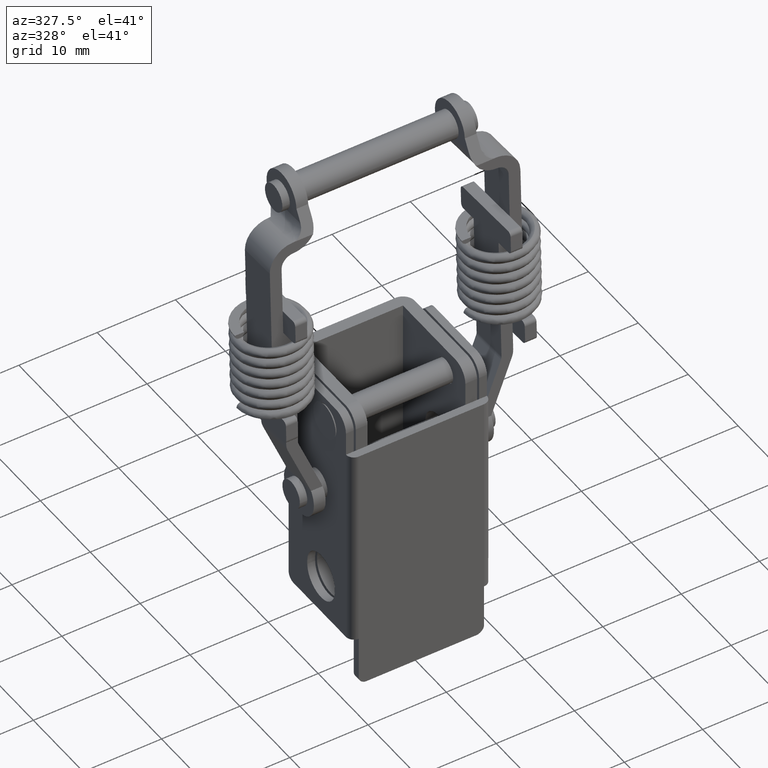
[diagram: clean part render]
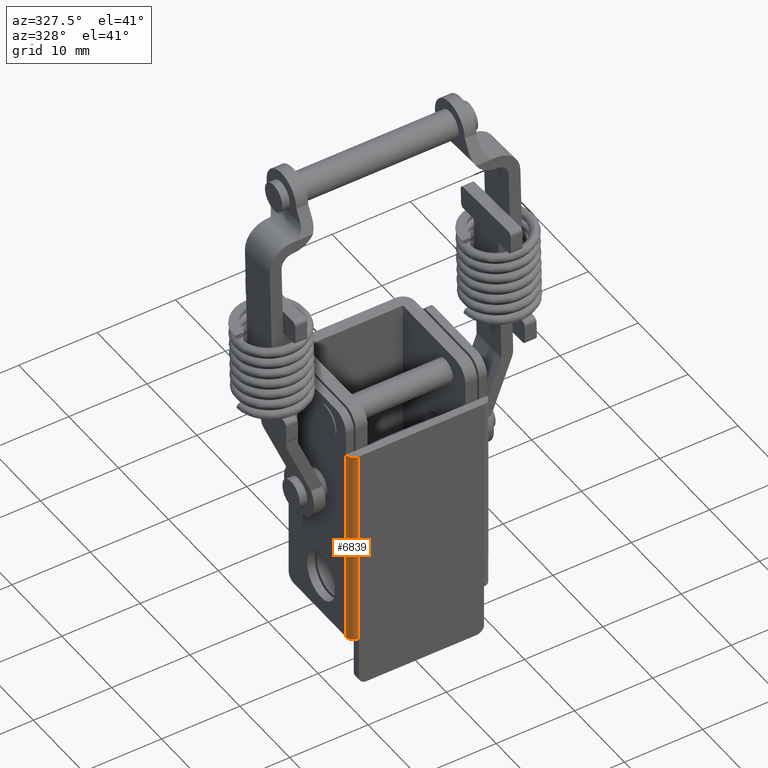
[diagram: same view with one face highlighted and labeled with its STEP entity id]
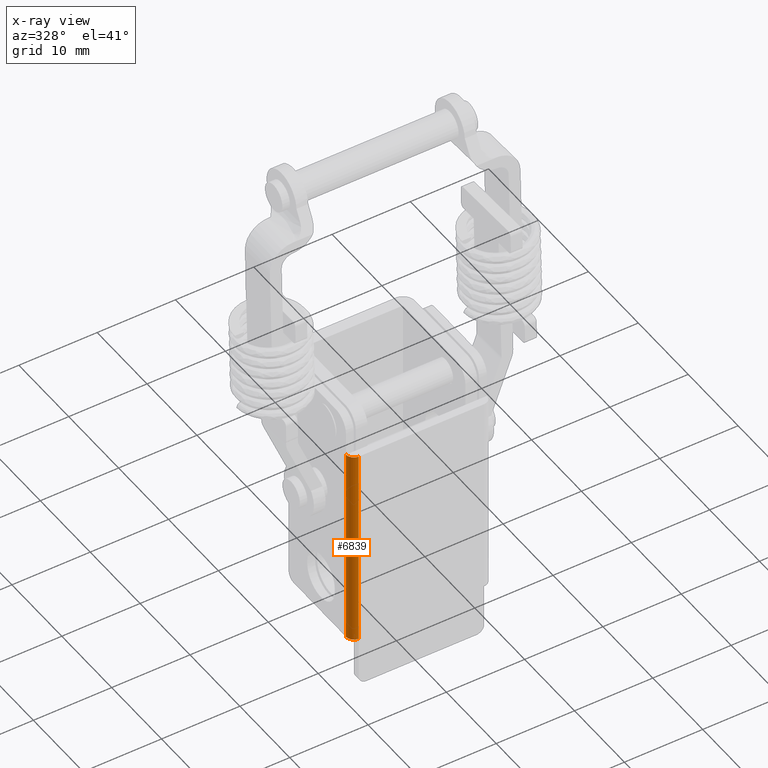
[diagram: x-ray of the same camera — body ghosted, the highlighted face saturated]
A machine part, auxiliary view. The second image highlights one B-rep face of the part: STEP entity #6839.
The next image is the same camera in x-ray: the body ghosted, the highlighted face saturated — about 0% of this face is hidden behind the body in this view.
In plain terms, the highlighted face is a freeform B-spline surface patch.
Its self-contained STEP definition (entity closure, byte-faithful):
#6779=CARTESIAN_POINT('',(-8.999657324934997,-13.973823051692129,7.650002063097237));
#6780=CARTESIAN_POINT('',(-8.999657325007370,-13.973823051692129,-19.666247936903879));
#6781=CARTESIAN_POINT('',(-9.028224451155428,-15.064757588594127,7.650002063097312));
#6782=CARTESIAN_POINT('',(-9.028224451227802,-15.064757588594127,-19.666247936903801));
#6783=CARTESIAN_POINT('',(-7.938951460424580,-14.998134798421869,7.650002063094426));
#6784=CARTESIAN_POINT('',(-7.938951460496951,-14.998134798421869,-19.666247936906689));
#6792=(BOUNDED_SURFACE()B_SPLINE_SURFACE(1,2,((#6779,#6781,#6783),(#6780,#6782,#6784)),.UNSPECIFIED.,.F.,.F.,.U.)B_SPLINE_SURFACE_WITH_KNOTS((2,2),(3,3),(0.0,27.316250000001119),(0.0,1.0),.UNSPECIFIED.)GEOMETRIC_REPRESENTATION_ITEM()RATIONAL_B_SPLINE_SURFACE(((1.0,0.675590207615660,1.0),(1.0,0.675590207615660,1.0)))REPRESENTATION_ITEM('')SURFACE());
#6793=CARTESIAN_POINT('',(-8.000000000077591,-15.0,-18.999997936906500));
#6794=VERTEX_POINT('',#6793);
#6795=CARTESIAN_POINT('',(-9.000000000030029,-14.0,-18.999997936902808));
#6796=VERTEX_POINT('',#6795);
#6797=CARTESIAN_POINT('',(-8.000000000077591,-15.0,-18.999997936906500));
#6798=CARTESIAN_POINT('',(-9.000000000030051,-14.999999999952466,-18.999997936902801));
#6799=CARTESIAN_POINT('',(-9.000000000030051,-14.0,-18.999997936902801));
#6807=(BOUNDED_CURVE()B_SPLINE_CURVE(2,(#6797,#6798,#6799),.UNSPECIFIED.,.F.,.U.)CURVE()GEOMETRIC_REPRESENTATION_ITEM()QUASI_UNIFORM_CURVE()RATIONAL_B_SPLINE_CURVE((1.0,0.707106781203355,1.0))REPRESENTATION_ITEM(''));
#6808=EDGE_CURVE('',#6794,#6796,#6807,.T.);
#6809=ORIENTED_EDGE('',*,*,#6808,.F.);
#6810=CARTESIAN_POINT('',(-7.999999999961160,-15.0,7.000000000004560));
#6811=VERTEX_POINT('',#6810);
#6812=CARTESIAN_POINT('',(-7.999999999961160,-15.0,7.000000000004560));
#6813=CARTESIAN_POINT('',(-8.000000000077591,-15.0,-18.999997936906500));
#6814=QUASI_UNIFORM_CURVE('',1,(#6812,#6813),.UNSPECIFIED.,.F.,.U.);
#6815=EDGE_CURVE('',#6811,#6794,#6814,.T.);
#6816=ORIENTED_EDGE('',*,*,#6815,.F.);
#6817=CARTESIAN_POINT('',(-8.999999999961151,-14.0,7.000002063097210));
#6818=VERTEX_POINT('',#6817);
#6819=CARTESIAN_POINT('',(-8.999999999961151,-14.0,7.000002063097210));
#6820=CARTESIAN_POINT('',(-8.999999999961155,-14.999999999999995,7.000001031551077));
#6821=CARTESIAN_POINT('',(-7.999999999961160,-15.0,7.000000000004560));
#6829=(BOUNDED_CURVE()B_SPLINE_CURVE(2,(#6819,#6820,#6821),.UNSPECIFIED.,.F.,.U.)CURVE()GEOMETRIC_REPRESENTATION_ITEM()QUASI_UNIFORM_CURVE()RATIONAL_B_SPLINE_CURVE((1.0,0.707106781186548,1.0))REPRESENTATION_ITEM(''));
#6830=EDGE_CURVE('',#6818,#6811,#6829,.T.);
#6831=ORIENTED_EDGE('',*,*,#6830,.F.);
#6832=CARTESIAN_POINT('',(-9.000000000030029,-14.0,-18.999997936902808));
#6833=CARTESIAN_POINT('',(-8.999999999961151,-14.0,7.000002063097210));
#6834=QUASI_UNIFORM_CURVE('',1,(#6832,#6833),.UNSPECIFIED.,.F.,.U.);
#6835=EDGE_CURVE('',#6796,#6818,#6834,.T.);
#6836=ORIENTED_EDGE('',*,*,#6835,.F.);
#6837=EDGE_LOOP('',(#6809,#6816,#6831,#6836));
#6838=FACE_OUTER_BOUND('',#6837,.T.);
#6839=ADVANCED_FACE('',(#6838),#6792,.T.);